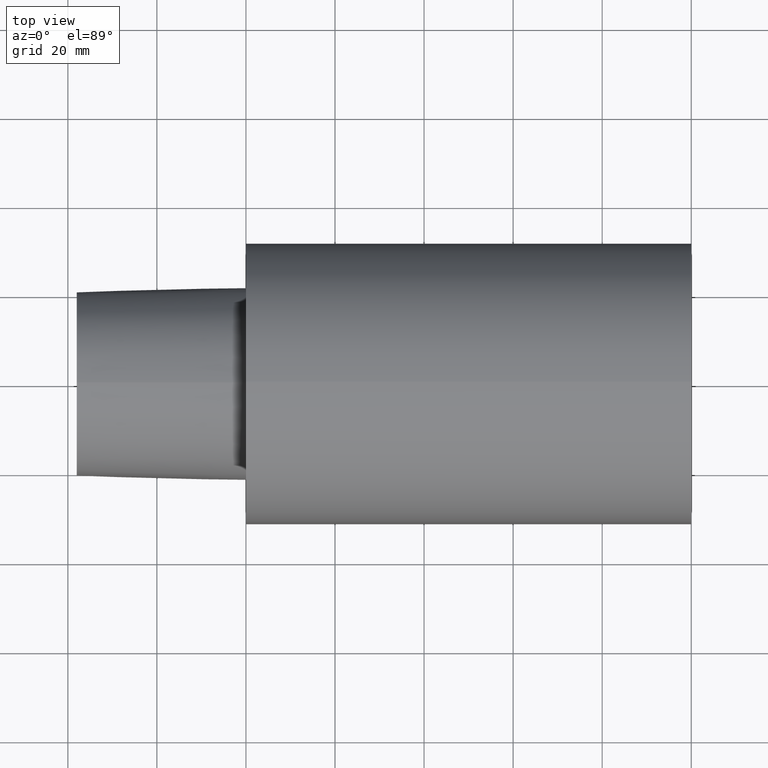
[diagram: clean part render]
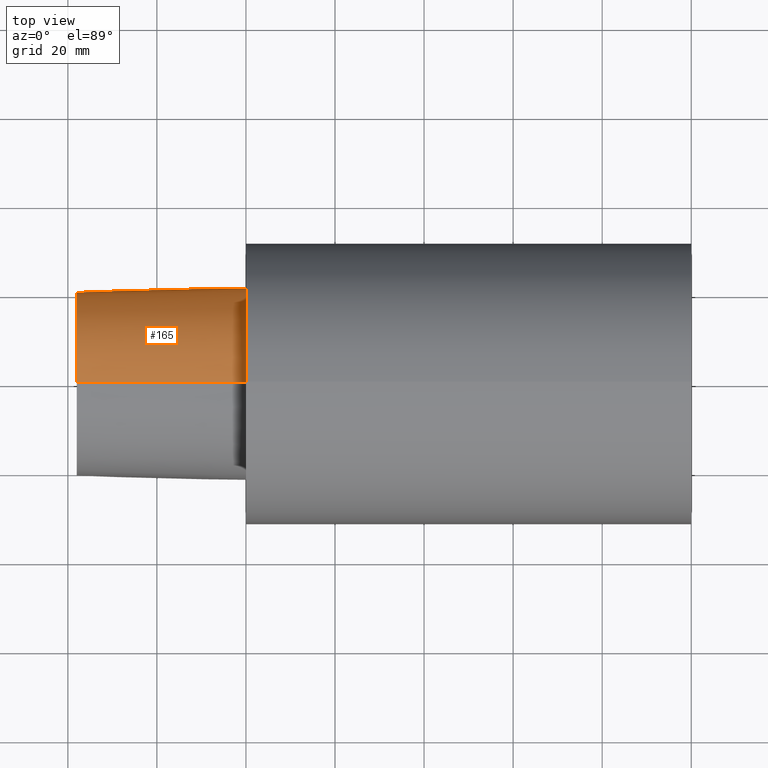
[diagram: same view with one face highlighted and labeled with its STEP entity id]
A machine part, top view. The second image highlights one B-rep face of the part: STEP entity #165.
In plain terms, the highlighted conical surface has half-angle 1.432 deg.
Its self-contained STEP definition (entity closure, byte-faithful):
#24 = DIRECTION ( 'NONE',  ( 0.000000000000000000, 0.000000000000000000, 1.000000000000000000 ) ) ;
#26 = CARTESIAN_POINT ( 'NONE',  ( 0.000000000000000000, 2.648985971153096932E-15, 21.63061196907898065 ) ) ;
#30 = AXIS2_PLACEMENT_3D ( 'NONE', #104, #155, #24 ) ;
#41 = DIRECTION ( 'NONE',  ( -1.000000000000000000, 0.000000000000000000, 0.000000000000000000 ) ) ;
#42 = CARTESIAN_POINT ( 'NONE',  ( 0.000000000000000000, 0.000000000000000000, 0.000000000000000000 ) ) ;
#52 = ORIENTED_EDGE ( 'NONE', *, *, #123, .F. ) ;
#54 = AXIS2_PLACEMENT_3D ( 'NONE', #242, #224, #82 ) ;
#56 = ORIENTED_EDGE ( 'NONE', *, *, #222, .F. ) ;
#58 = VERTEX_POINT ( 'NONE', #216 ) ;
#60 = CARTESIAN_POINT ( 'NONE',  ( 0.000000000000000000, 0.000000000000000000, -21.63061196907898065 ) ) ;
#63 = LINE ( 'NONE', #26, #72 ) ;
#71 = CONICAL_SURFACE ( 'NONE', #54, 21.63061196907898065, 0.02499698951949481940 ) ;
#72 = VECTOR ( 'NONE', #156, 1000.000000000000114 ) ;
#82 = DIRECTION ( 'NONE',  ( 0.000000000000000000, 0.000000000000000000, -1.000000000000000000 ) ) ;
#101 = DIRECTION ( 'NONE',  ( 0.000000000000000000, 0.000000000000000000, 1.000000000000000000 ) ) ;
#102 = CARTESIAN_POINT ( 'NONE',  ( 0.000000000000000000, 0.000000000000000000, -21.63061196907898065 ) ) ;
#104 = CARTESIAN_POINT ( 'NONE',  ( -37.99999996124000035, 0.000000000000000000, 0.000000000000000000 ) ) ;
#112 = VERTEX_POINT ( 'NONE', #145 ) ;
#113 = VERTEX_POINT ( 'NONE', #180 ) ;
#123 = EDGE_CURVE ( 'NONE', #58, #113, #179, .T. ) ;
#145 = CARTESIAN_POINT ( 'NONE',  ( 0.000000000000000000, 2.648985971153096932E-15, 21.63061196907898065 ) ) ;
#149 = ORIENTED_EDGE ( 'NONE', *, *, #170, .T. ) ;
#153 = EDGE_LOOP ( 'NONE', ( #52, #192, #149, #56 ) ) ;
#155 = DIRECTION ( 'NONE',  ( -1.000000000000000000, 0.000000000000000000, 0.000000000000000000 ) ) ;
#156 = DIRECTION ( 'NONE',  ( 0.9996875915253454759, 3.060929527057623083E-18, 0.02499438637482059161 ) ) ;
#159 = AXIS2_PLACEMENT_3D ( 'NONE', #42, #41, #101 ) ;
#165 = ADVANCED_FACE ( 'NONE', ( #239 ), #71, .T. ) ;
#170 = EDGE_CURVE ( 'NONE', #112, #174, #202, .T. ) ;
#174 = VERTEX_POINT ( 'NONE', #60 ) ;
#178 = DIRECTION ( 'NONE',  ( 0.9996875915253454759, 0.000000000000000000, -0.02499438637482059161 ) ) ;
#179 = CIRCLE ( 'NONE', #30, 20.68052847366897140 ) ;
#180 = CARTESIAN_POINT ( 'NONE',  ( -37.99999996124000035, 0.000000000000000000, -20.68052847366897140 ) ) ;
#192 = ORIENTED_EDGE ( 'NONE', *, *, #248, .T. ) ;
#202 = CIRCLE ( 'NONE', #159, 21.63061196907898065 ) ;
#216 = CARTESIAN_POINT ( 'NONE',  ( -37.99999996124000035, 2.590810135574270981E-15, 20.68052847366897140 ) ) ;
#222 = EDGE_CURVE ( 'NONE', #113, #174, #225, .T. ) ;
#224 = DIRECTION ( 'NONE',  ( 1.000000000000000000, 0.000000000000000000, 0.000000000000000000 ) ) ;
#225 = LINE ( 'NONE', #102, #232 ) ;
#232 = VECTOR ( 'NONE', #178, 1000.000000000000114 ) ;
#239 = FACE_OUTER_BOUND ( 'NONE', #153, .T. ) ;
#242 = CARTESIAN_POINT ( 'NONE',  ( 0.000000000000000000, 0.000000000000000000, 0.000000000000000000 ) ) ;
#248 = EDGE_CURVE ( 'NONE', #58, #112, #63, .T. ) ;